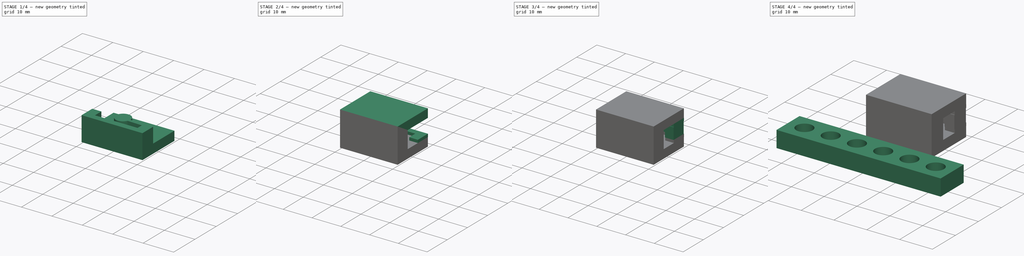
[diagram: build sequence overview — one tinted view per stage of 4, left to right]
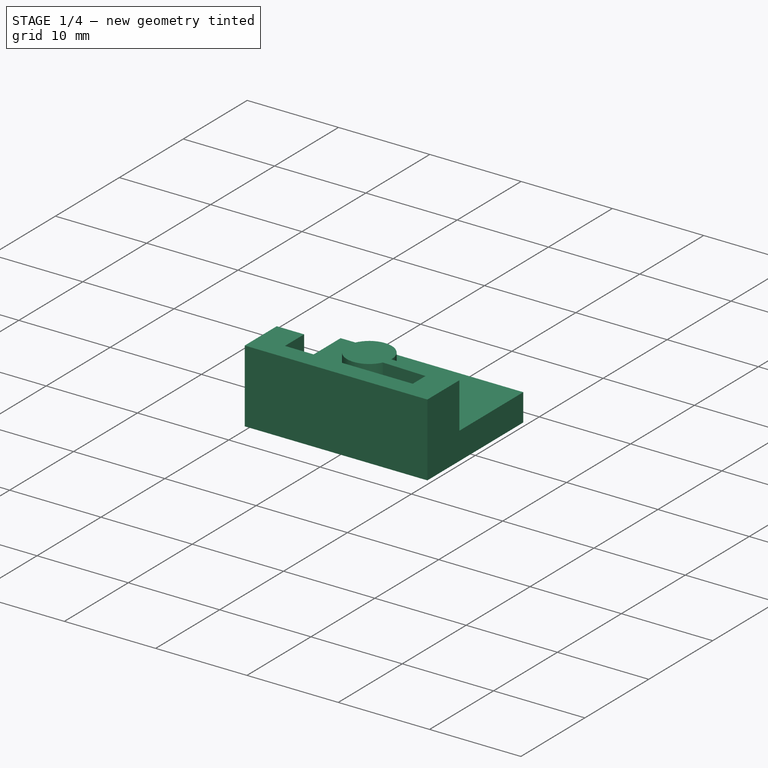
[diagram: stage 1 of 4 — iso view after this stage's code; geometry added in this stage tinted green]
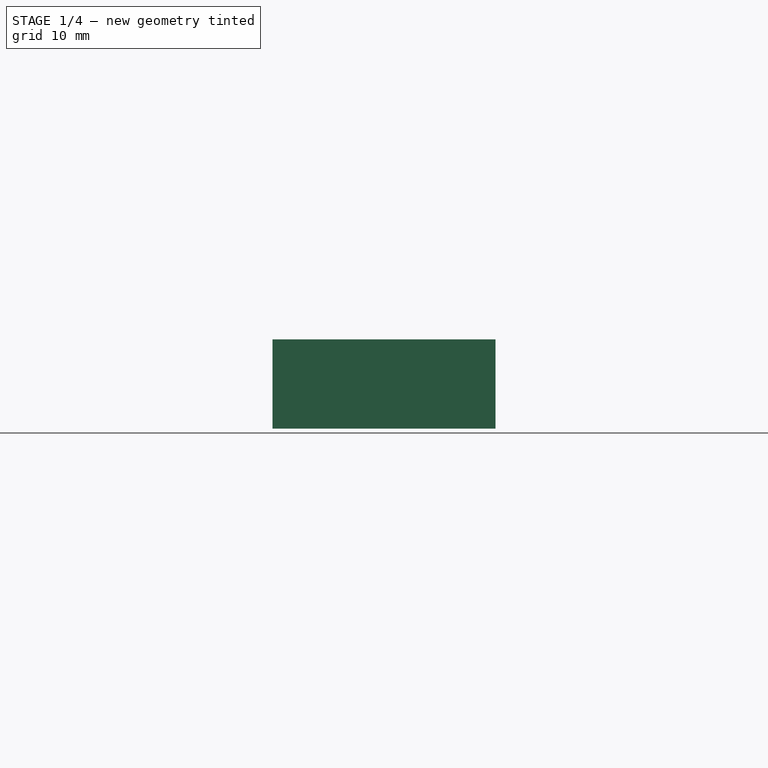
[diagram: stage 1 of 4 — front view after this stage's code; geometry added in this stage tinted green]
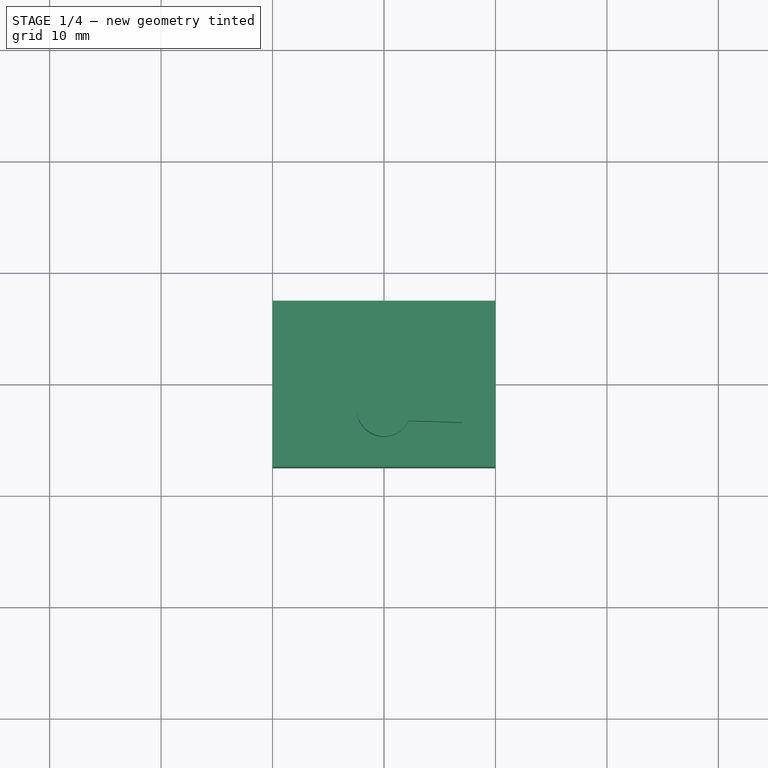
[diagram: stage 1 of 4 — top view after this stage's code; geometry added in this stage tinted green]
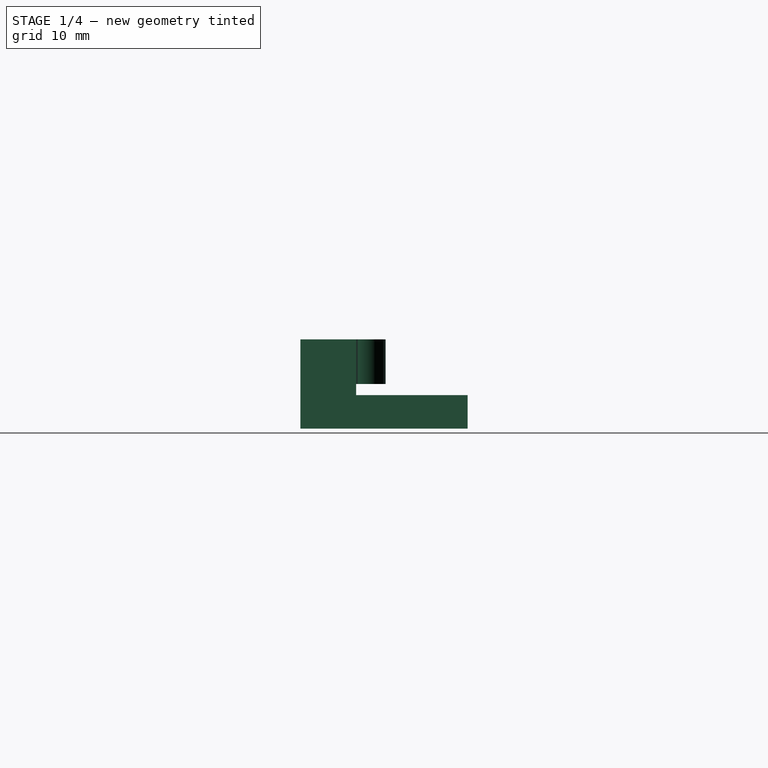
[diagram: stage 1 of 4 — right view after this stage's code; geometry added in this stage tinted green]
FCSTD DOCUMENT  (FreeCAD 1.0R39319 (Git))
Label: ratchet
License: All rights reserved
LicenseURL: https://en.wikipedia.org/wiki/All_rights_reserved
objects: Sketcher::SketchObject×10, PartDesign::Pad×9, PartDesign::Plane×6, PartDesign::Body×2, PartDesign::Pocket×1, PartDesign::LinearPattern×1
note: 60 computed .brp shape members not serialized (recipe doc carries the construction recipe); baked Part::Feature solids carry a one-line shape summary decoded from their .brp

FEATURE [PartDesign::Body] Body
  AllowCompound = false
  Group = -> [Sketch,Pad,Sketch001,Pocket,LinearPattern]
  Origin = -> Origin
  Tip = -> LinearPattern
FEATURE [Sketcher::SketchObject] Sketch002
  ArcFitTolerance = 1e-06
  AttachmentSupport = -> [XY_Plane001]
  FullyConstrained = true
  MakeInternals = false
  MapMode = 5
  sketch-geometry (5):
    g0: LineSegment StartX=-10 StartY=12.5 StartZ=0 EndX=10 EndY=12.5 EndZ=0
    g1: LineSegment StartX=10 StartY=12.5 StartZ=0 EndX=10 EndY=27.5 EndZ=0
    g2: LineSegment StartX=10 StartY=27.5 StartZ=0 EndX=-10 EndY=27.5 EndZ=0
    g3: LineSegment StartX=-10 StartY=27.5 StartZ=0 EndX=-10 EndY=12.5 EndZ=0
    g4: GeomPoint [constr] X=0 Y=20 Z=0
  constraints (13):
    c: Coincident(g0,g1)
    c: Coincident(g1,g2)
    c: Coincident(g2,g3)
    c: Coincident(g3,g0)
    c: Horizontal(g0)
    c: Horizontal(g2)
    c: Vertical(g1)
    c: Vertical(g3)
    c: Symmetric(g2,g0,g4)
    c: Distance(g1,g3) = 20
    c: Distance(g0,g2) = 15
    c: PointOnObject(g4,g-2)
    c: DistanceY(g-1,g4) = 20
FEATURE [PartDesign::Pad] Pad001
  Direction = (0,0,1)
  Length = 3
  Length2 = 10
  Profile = -> Sketch002
  ReferenceAxis = -> Sketch002 [N_Axis]
  Refine = true
  Suppressed = false
  Type = 0
FEATURE [PartDesign::Plane] DatumPlane
  AttachmentSupport = -> [Pad001]
  Length = 60
  MapMode = 5
  Placement = pos=(0,0,3) rot=(0,0,1;0rad)
  ResizeMode = 0
  Width = 60
FEATURE [Sketcher::SketchObject] Sketch003
  ArcFitTolerance = 1e-06
  AttachmentSupport = -> [DatumPlane]
  FullyConstrained = false
  MakeInternals = false
  MapMode = 5
  Placement = pos=(0,0,3) rot=(0,0,1;0rad)
  sketch-geometry (9):
    g0: LineSegment StartX=-10 StartY=12.5 StartZ=0 EndX=10 EndY=12.5 EndZ=0
    g1: LineSegment StartX=10 StartY=12.5 StartZ=0 EndX=10 EndY=17.5 EndZ=0
    g2: LineSegment StartX=-10 StartY=17.5 StartZ=0 EndX=-10 EndY=12.5 EndZ=0
    g3: GeomPoint [constr] X=0 Y=14.8403 Z=0
    g4: LineSegment StartX=-10 StartY=17.5 StartZ=0 EndX=-7 EndY=17.5 EndZ=0
    g5: LineSegment StartX=-7 StartY=14.5 StartZ=0 EndX=7 EndY=14.5 EndZ=0
    g6: LineSegment StartX=7 StartY=17.5 StartZ=0 EndX=10 EndY=17.5 EndZ=0
    g7: LineSegment StartX=-7 StartY=17.5 StartZ=0 EndX=-7 EndY=14.5 EndZ=0
    g8: LineSegment StartX=7 StartY=17.5 StartZ=0 EndX=7 EndY=14.5 EndZ=0
  constraints (25):
    c: Coincident(g0,g1)
    c: Coincident(g2,g0)
    c: Horizontal(g0)
    c: Vertical(g1)
    c: Vertical(g2)
    c: Distance(g1,g2) = 20
    c: Distance(g0,g2) = 5
    c: PointOnObject(g3,g-2)
    c: DistanceY(g-1,g0) = 12.5
    c: Coincident(g4,g2)
    c: Horizontal(g5)
    c: Coincident(g6,g1)
    c: Coincident(g7,g4)
    c: Coincident(g7,g5)
    c: Parallel(g7,g-2)
    c: Coincident(g8,g6)
    c: Coincident(g8,g5)
    c: Parallel(g-2,g8)
    c: Parallel(g4,g-1)
    c: Parallel(g6,g-1)
    c: DistanceY(g0,g5) = 2
    c: DistanceX(g2,g4) = 3
    c: DistanceX(g6,g1) = 3
    c: DistanceY(g0,g1) = 5
    c: DistanceX(g0,g3) = 10
FEATURE [PartDesign::Pad] Pad002
  BaseFeature = -> Pad001
  Direction = (0,0,1)
  Length = 1
  Length2 = 10
  Profile = -> Sketch003
  ReferenceAxis = -> Sketch003 [N_Axis]
  Refine = true
  Suppressed = false
  Type = 0
FEATURE [PartDesign::Plane] DatumPlane002
  AttachmentSupport = -> [Pad002]
  Length = 60
  MapMode = 5
  Placement = pos=(0,0,4) rot=(0,0,1;0rad)
  ResizeMode = 0
  Width = 60
FEATURE [Sketcher::SketchObject] Sketch005
  ArcFitTolerance = 1e-06
  AttachmentSupport = -> [DatumPlane002]
  FullyConstrained = false
  MakeInternals = false
  MapMode = 5
  Placement = pos=(0,0,4) rot=(0,0,1;0rad)
  sketch-geometry (12):
    g0: LineSegment StartX=-10 StartY=12.5 StartZ=0 EndX=10 EndY=12.5 EndZ=0
    g1: LineSegment StartX=10 StartY=12.5 StartZ=0 EndX=10 EndY=17.5 EndZ=0
    g2: LineSegment StartX=-10 StartY=17.5 StartZ=0 EndX=-10 EndY=12.5 EndZ=0
    g3: GeomPoint [constr] X=0 Y=14.8403 Z=0
    g4: LineSegment StartX=-10 StartY=17.5 StartZ=0 EndX=-7 EndY=17.5 EndZ=0
    g5: LineSegment StartX=-7 StartY=14.5 StartZ=0 EndX=7 EndY=14.5 EndZ=0
    g6: LineSegment StartX=7 StartY=17.5 StartZ=0 EndX=10 EndY=17.5 EndZ=0
    g7: LineSegment StartX=-7 StartY=17.5 StartZ=0 EndX=-7 EndY=14.5 EndZ=0
    g8: LineSegment StartX=7 StartY=16.4995 StartZ=0 EndX=7 EndY=14.5 EndZ=0
    g9: ArcOfCircle CenterX=0 CenterY=17.7 CenterZ=0 NormalX=0 NormalY=0 NormalZ=1 AngleXU=0 Radius=2.45 StartAngle=6.26097 EndAngle=12.1246
    g10: LineSegment StartX=2.4494 StartY=17.6456 StartZ=0 EndX=7 EndY=17.5 EndZ=0
    g11: LineSegment StartX=7 StartY=16.4995 StartZ=0 EndX=2.21481 EndY=16.6526 EndZ=0
  constraints (31):
    c: Coincident(g0,g1)
    c: Coincident(g2,g0)
    c: Horizontal(g0)
    c: Vertical(g1)
    c: Vertical(g2)
    c: Distance(g1,g2) = 20
    c: Distance(g0,g2) = 5
    c: PointOnObject(g3,g-2)
    c: DistanceY(g-1,g0) = 12.5
    c: Coincident(g4,g2)
    c: Horizontal(g5)
    c: Coincident(g6,g1)
    c: Coincident(g7,g4)
    c: Coincident(g7,g5)
    c: Parallel(g7,g-2)
    c: Coincident(g8,g5)
    c: Parallel(g-2,g8)
    c: Parallel(g4,g-1)
    c: Parallel(g6,g-1)
    c: DistanceY(g0,g5) = 2
    c: DistanceX(g2,g4) = 3
    c: DistanceX(g6,g1) = 3
    c: DistanceY(g0,g1) = 5
    c: DistanceX(g0,g3) = 10
    c: Diameter(g9) = 4.9
    c: PointOnObject(g9,g-2)
    c: DistanceY(g0,g9) = 5.2
    c: Parallel(g10,g11)
    c: Coincident(g9,g11)
    c: Coincident(g9,g10)
    c: Coincident(g8,g11)
FEATURE [PartDesign::Pad] Pad003
  BaseFeature = -> Pad002
  Direction = (0,0,1)
  Length = 4
  Length2 = 10
  Profile = -> Sketch005
  ReferenceAxis = -> Sketch005 [N_Axis]
  Refine = true
  Suppressed = false
  Type = 0
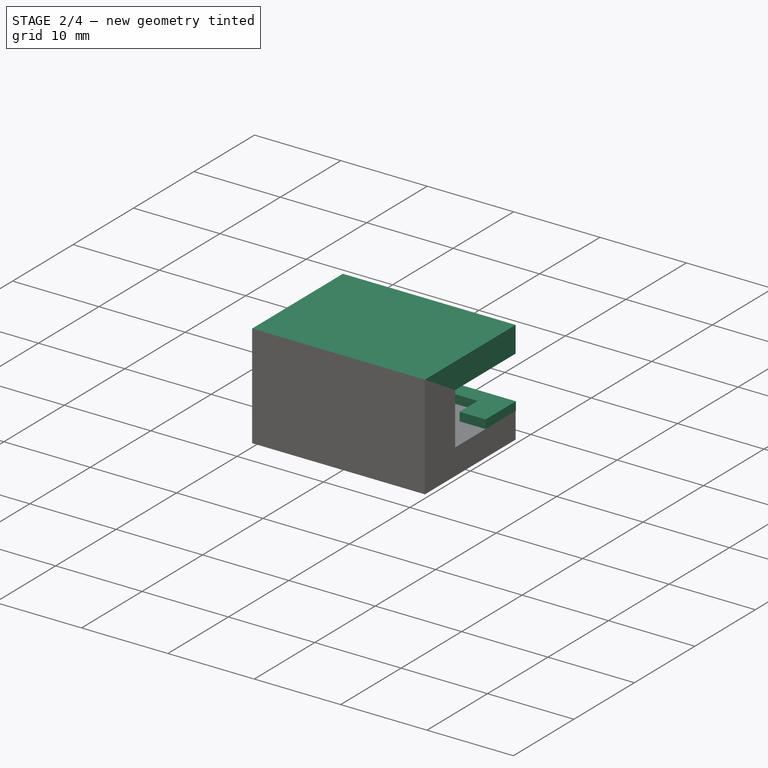
[diagram: stage 2 of 4 — iso view after this stage's code; geometry added in this stage tinted green]
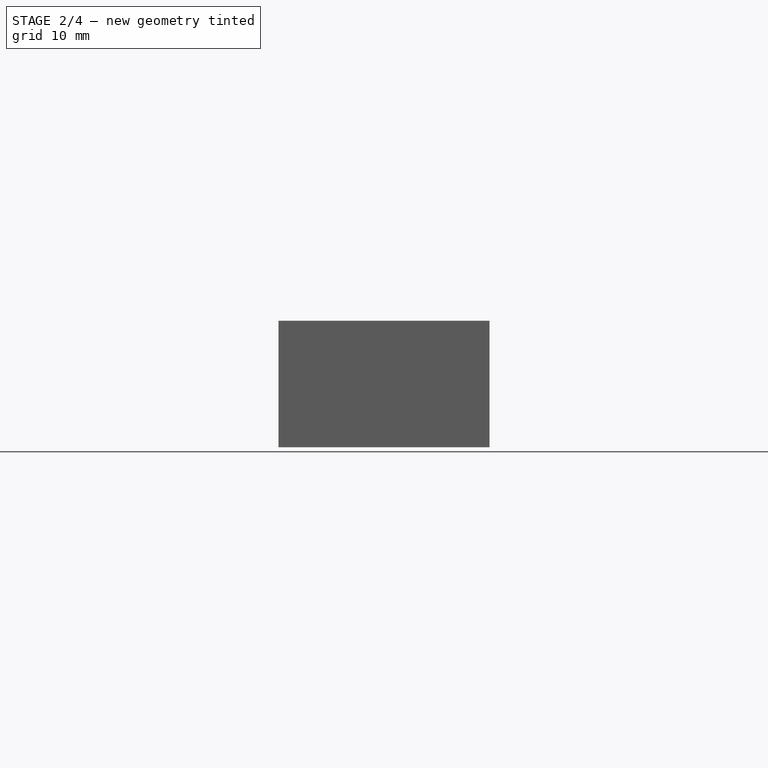
[diagram: stage 2 of 4 — front view after this stage's code; geometry added in this stage tinted green]
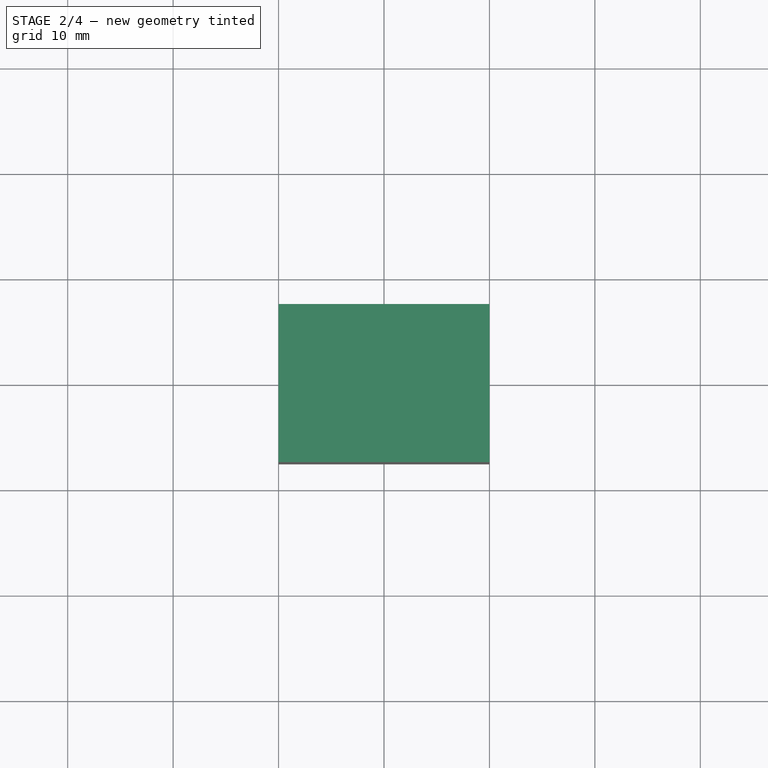
[diagram: stage 2 of 4 — top view after this stage's code; geometry added in this stage tinted green]
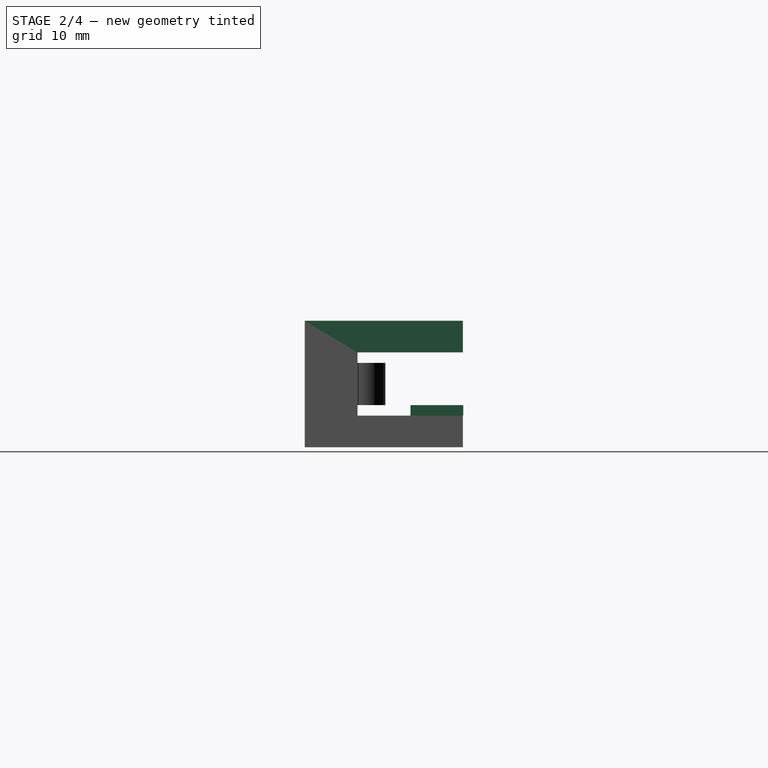
[diagram: stage 2 of 4 — right view after this stage's code; geometry added in this stage tinted green]
FEATURE [PartDesign::Plane] DatumPlane003
  AttachmentSupport = -> [Pad003]
  Length = 60
  MapMode = 5
  Placement = pos=(0,0,8) rot=(0,0,1;0rad)
  ResizeMode = 0
  Width = 60
FEATURE [Sketcher::SketchObject] Sketch006
  ArcFitTolerance = 1e-06
  AttachmentSupport = -> [DatumPlane003]
  FullyConstrained = false
  MakeInternals = false
  MapMode = 5
  Placement = pos=(0,0,8) rot=(0,0,1;0rad)
  sketch-geometry (9):
    g0: LineSegment StartX=-10 StartY=12.5 StartZ=0 EndX=10 EndY=12.5 EndZ=0
    g1: LineSegment StartX=10 StartY=12.5 StartZ=0 EndX=10 EndY=17.5 EndZ=0
    g2: LineSegment StartX=-10 StartY=17.5 StartZ=0 EndX=-10 EndY=12.5 EndZ=0
    g3: GeomPoint [constr] X=0 Y=14.8403 Z=0
    g4: LineSegment StartX=-10 StartY=17.5 StartZ=0 EndX=-7 EndY=17.5 EndZ=0
    g5: LineSegment StartX=-7 StartY=14.5 StartZ=0 EndX=7 EndY=14.5 EndZ=0
    g6: LineSegment StartX=7 StartY=17.5 StartZ=0 EndX=10 EndY=17.5 EndZ=0
    g7: LineSegment StartX=-7 StartY=17.5 StartZ=0 EndX=-7 EndY=14.5 EndZ=0
    g8: LineSegment StartX=7 StartY=17.5 StartZ=0 EndX=7 EndY=14.5 EndZ=0
  constraints (25):
    c: Coincident(g0,g1)
    c: Coincident(g2,g0)
    c: Horizontal(g0)
    c: Vertical(g1)
    c: Vertical(g2)
    c: Distance(g1,g2) = 20
    c: Distance(g0,g2) = 5
    c: PointOnObject(g3,g-2)
    c: DistanceY(g-1,g0) = 12.5
    c: Coincident(g4,g2)
    c: Horizontal(g5)
    c: Coincident(g6,g1)
    c: Coincident(g7,g4)
    c: Coincident(g7,g5)
    c: Parallel(g7,g-2)
    c: Coincident(g8,g6)
    c: Coincident(g8,g5)
    c: Parallel(g-2,g8)
    c: Parallel(g4,g-1)
    c: Parallel(g6,g-1)
    c: DistanceY(g0,g5) = 2
    c: DistanceX(g2,g4) = 3
    c: DistanceX(g6,g1) = 3
    c: DistanceY(g0,g1) = 5
    c: DistanceX(g0,g3) = 10
FEATURE [PartDesign::Pad] Pad004
  BaseFeature = -> Pad003
  Direction = (0,0,1)
  Length = 1
  Length2 = 10
  Profile = -> Sketch006
  ReferenceAxis = -> Sketch006 [N_Axis]
  Refine = true
  Suppressed = false
  Type = 0
FEATURE [PartDesign::Plane] DatumPlane004
  AttachmentSupport = -> [Pad004]
  Length = 60
  MapMode = 5
  Placement = pos=(0,0,9) rot=(0,0,1;0rad)
  ResizeMode = 0
  Width = 60
FEATURE [Sketcher::SketchObject] Sketch007
  ArcFitTolerance = 1e-06
  AttachmentSupport = -> [DatumPlane004]
  FullyConstrained = true
  MakeInternals = false
  MapMode = 5
  Placement = pos=(0,0,9) rot=(0,0,1;0rad)
  sketch-geometry (5):
    g0: LineSegment StartX=-10 StartY=12.5 StartZ=0 EndX=10 EndY=12.5 EndZ=0
    g1: LineSegment StartX=10 StartY=12.5 StartZ=0 EndX=10 EndY=27.5 EndZ=0
    g2: LineSegment StartX=10 StartY=27.5 StartZ=0 EndX=-10 EndY=27.5 EndZ=0
    g3: LineSegment StartX=-10 StartY=27.5 StartZ=0 EndX=-10 EndY=12.5 EndZ=0
    g4: GeomPoint [constr] X=0 Y=20 Z=0
  constraints (13):
    c: Coincident(g0,g1)
    c: Coincident(g1,g2)
    c: Coincident(g2,g3)
    c: Coincident(g3,g0)
    c: Horizontal(g0)
    c: Horizontal(g2)
    c: Vertical(g1)
    c: Vertical(g3)
    c: Symmetric(g2,g0,g4)
    c: Distance(g1,g3) = 20
    c: Distance(g0,g2) = 15
    c: PointOnObject(g4,g-2)
    c: DistanceY(g-1,g0) = 12.5
FEATURE [PartDesign::Pad] Pad005
  BaseFeature = -> Pad004
  Direction = (0,0,1)
  Length = 3
  Length2 = 10
  Profile = -> Sketch007
  ReferenceAxis = -> Sketch007 [N_Axis]
  Refine = true
  Suppressed = false
  Type = 0
FEATURE [Sketcher::SketchObject] Sketch008
  ArcFitTolerance = 1e-06
  AttachmentSupport = -> [DatumPlane]
  FullyConstrained = false
  MakeInternals = false
  MapMode = 5
  Placement = pos=(0,0,3) rot=(0,0,1;0rad)
  sketch-geometry (9):
    g0: LineSegment StartX=10 StartY=27.5295 StartZ=0 EndX=-10 EndY=27.5295 EndZ=0
    g1: LineSegment StartX=-10 StartY=27.5295 StartZ=0 EndX=-10 EndY=22.5295 EndZ=0
    g2: LineSegment StartX=10 StartY=22.5295 StartZ=0 EndX=10 EndY=27.5295 EndZ=0
    g3: GeomPoint [constr] X=0 Y=25.1892 Z=0
    g4: LineSegment StartX=10 StartY=22.5295 StartZ=0 EndX=7 EndY=22.5295 EndZ=0
    g5: LineSegment StartX=7 StartY=25.5295 StartZ=0 EndX=-7 EndY=25.5295 EndZ=0
    g6: LineSegment StartX=-7 StartY=22.5295 StartZ=0 EndX=-10 EndY=22.5295 EndZ=0
    g7: LineSegment StartX=7 StartY=22.5295 StartZ=0 EndX=7 EndY=25.5295 EndZ=0
    g8: LineSegment StartX=-7 StartY=22.5295 StartZ=0 EndX=-7 EndY=25.5295 EndZ=0
  constraints (10):
    c: Coincident(g0,g1)
    c: Coincident(g2,g0)
    c: Distance(g1,g2) = 20
    c: Distance(g0,g2) = 5
    c: Coincident(g4,g2)
    c: Coincident(g6,g1)
    c: Coincident(g7,g4)
    c: Coincident(g7,g5)
    c: Coincident(g8,g6)
    c: Coincident(g8,g5)
FEATURE [PartDesign::Pad] Pad006
  BaseFeature = -> Pad005
  Direction = (0,0,1)
  Length = 1
  Length2 = 10
  Profile = -> Sketch008
  ReferenceAxis = -> Sketch008 [N_Axis]
  Refine = true
  Suppressed = false
  Type = 0
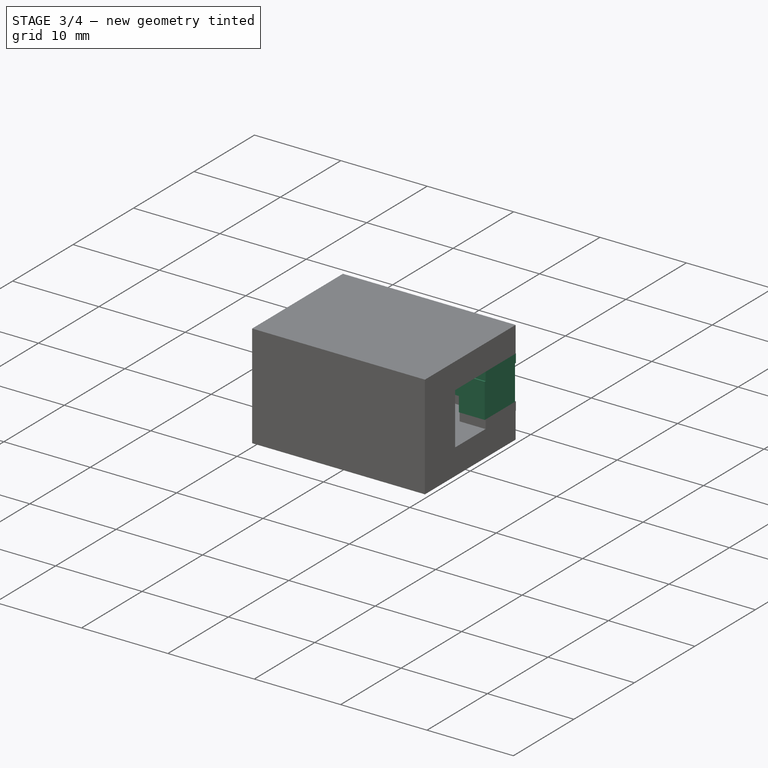
[diagram: stage 3 of 4 — iso view after this stage's code; geometry added in this stage tinted green]
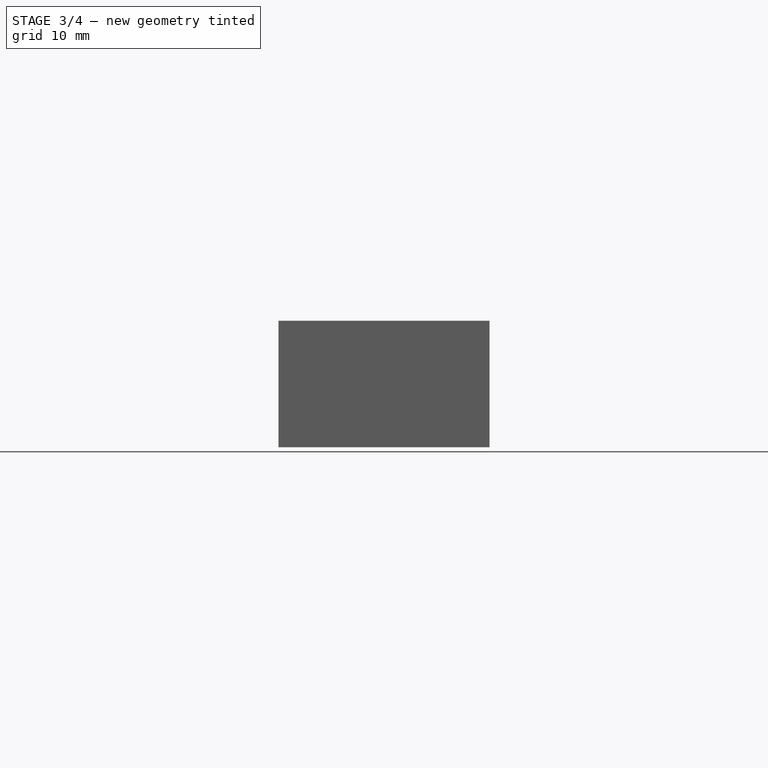
[diagram: stage 3 of 4 — front view after this stage's code; geometry added in this stage tinted green]
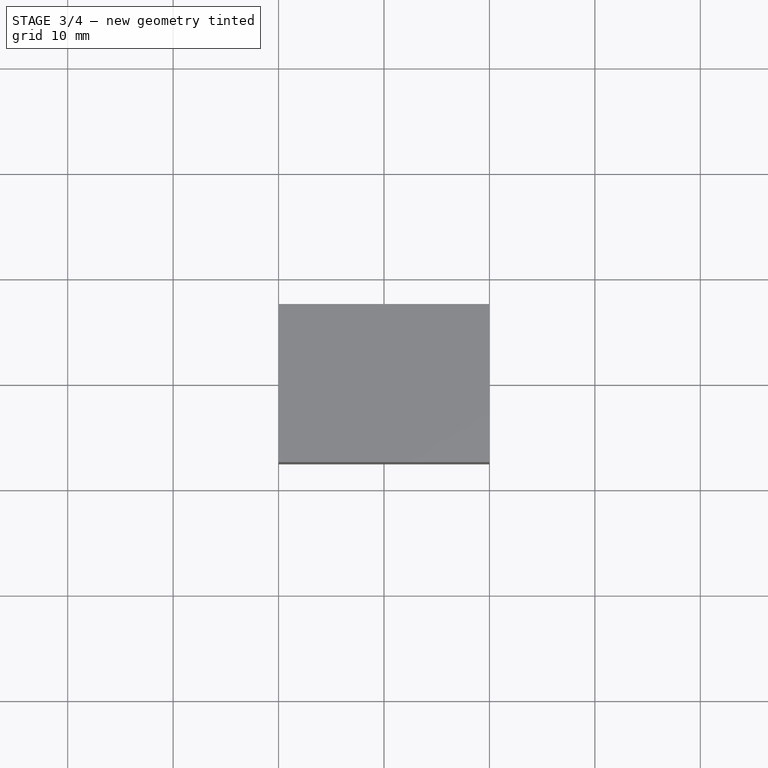
[diagram: stage 3 of 4 — top view after this stage's code; geometry added in this stage tinted green]
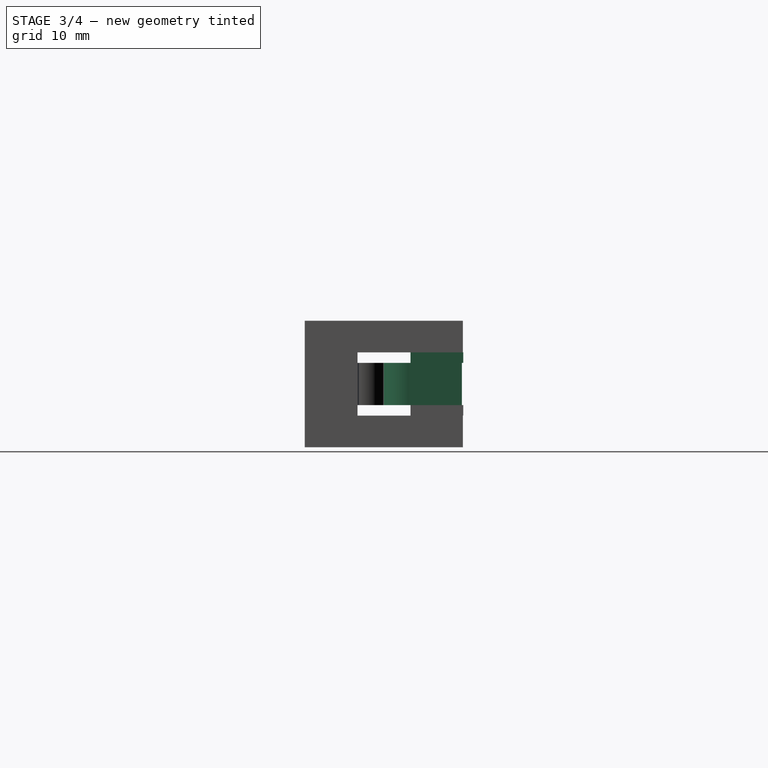
[diagram: stage 3 of 4 — right view after this stage's code; geometry added in this stage tinted green]
FEATURE [PartDesign::Plane] DatumPlane005
  AttachmentSupport = -> [Pad006]
  Length = 60
  MapMode = 5
  Placement = pos=(0,0,4) rot=(0,0,1;0rad)
  ResizeMode = 0
  Width = 60
FEATURE [Sketcher::SketchObject] Sketch009
  ArcFitTolerance = 1e-06
  AttachmentSupport = -> [DatumPlane005]
  FullyConstrained = false
  MakeInternals = false
  MapMode = 5
  Placement = pos=(0,0,4) rot=(0,0,1;0rad)
  sketch-geometry (12):
    g0: LineSegment StartX=10 StartY=27.4 StartZ=0 EndX=-10 EndY=27.4 EndZ=0
    g1: LineSegment StartX=-10 StartY=27.4 StartZ=0 EndX=-10 EndY=22.4 EndZ=0
    g2: LineSegment StartX=10 StartY=22.4 StartZ=0 EndX=10 EndY=27.4 EndZ=0
    g3: GeomPoint [constr] X=0 Y=25.0597 Z=0
    g4: LineSegment StartX=10 StartY=22.4 StartZ=0 EndX=7 EndY=22.4 EndZ=0
    g5: LineSegment StartX=7 StartY=25.4 StartZ=0 EndX=-7 EndY=25.4 EndZ=0
    g6: LineSegment StartX=-7 StartY=22.4 StartZ=0 EndX=-10 EndY=22.4 EndZ=0
    g7: LineSegment StartX=7 StartY=22.4 StartZ=0 EndX=7 EndY=25.4 EndZ=0
    g8: LineSegment StartX=-7 StartY=23.4005 StartZ=0 EndX=-7 EndY=25.4 EndZ=0
    g9: ArcOfCircle CenterX=5.3943e-07 CenterY=22.2 CenterZ=0 NormalX=0 NormalY=0 NormalZ=1 AngleXU=0 Radius=2.45 StartAngle=3.11938 EndAngle=8.98303
    g10: LineSegment StartX=-2.44939 StartY=22.2544 StartZ=0 EndX=-7 EndY=22.4 EndZ=0
    g11: LineSegment StartX=-7 StartY=23.4005 StartZ=0 EndX=-2.21481 EndY=23.2474 EndZ=0
  constraints (14):
    c: Coincident(g0,g1)
    c: Coincident(g2,g0)
    c: Distance(g1,g2) = 20
    c: Distance(g0,g2) = 5
    c: Coincident(g4,g2)
    c: Coincident(g6,g1)
    c: Coincident(g7,g4)
    c: Coincident(g7,g5)
    c: Coincident(g8,g5)
    c: Diameter(g9) = 4.9
    c: Parallel(g10,g11)
    c: Coincident(g9,g11)
    c: Coincident(g9,g10)
    c: Coincident(g8,g11)
FEATURE [PartDesign::Pad] Pad007
  BaseFeature = -> Pad006
  Direction = (0,0,1)
  Length = 4
  Length2 = 10
  Profile = -> Sketch009
  ReferenceAxis = -> Sketch009 [N_Axis]
  Refine = true
  Suppressed = false
  Type = 0
FEATURE [PartDesign::Plane] DatumPlane006
  AttachmentSupport = -> [Pad007]
  Length = 60
  MapMode = 5
  Placement = pos=(0,0,8) rot=(0,0,1;0rad)
  ResizeMode = 0
  Width = 60
FEATURE [Sketcher::SketchObject] Sketch010
  ArcFitTolerance = 1e-06
  AttachmentSupport = -> [DatumPlane006]
  FullyConstrained = false
  MakeInternals = false
  MapMode = 5
  Placement = pos=(0,0,8) rot=(0,0,1;0rad)
  sketch-geometry (9):
    g0: LineSegment StartX=10 StartY=27.5295 StartZ=0 EndX=-10 EndY=27.5295 EndZ=0
    g1: LineSegment StartX=-10 StartY=27.5295 StartZ=0 EndX=-10 EndY=22.5295 EndZ=0
    g2: LineSegment StartX=10 StartY=22.5295 StartZ=0 EndX=10 EndY=27.5295 EndZ=0
    g3: GeomPoint [constr] X=0 Y=25.1892 Z=0
    g4: LineSegment StartX=10 StartY=22.5295 StartZ=0 EndX=7 EndY=22.5295 EndZ=0
    g5: LineSegment StartX=7 StartY=25.5295 StartZ=0 EndX=-7 EndY=25.5295 EndZ=0
    g6: LineSegment StartX=-7 StartY=22.5295 StartZ=0 EndX=-10 EndY=22.5295 EndZ=0
    g7: LineSegment StartX=7 StartY=22.5295 StartZ=0 EndX=7 EndY=25.5295 EndZ=0
    g8: LineSegment StartX=-7 StartY=22.5295 StartZ=0 EndX=-7 EndY=25.5295 EndZ=0
  constraints (10):
    c: Coincident(g0,g1)
    c: Coincident(g2,g0)
    c: Distance(g1,g2) = 20
    c: Distance(g0,g2) = 5
    c: Coincident(g4,g2)
    c: Coincident(g6,g1)
    c: Coincident(g7,g4)
    c: Coincident(g7,g5)
    c: Coincident(g8,g6)
    c: Coincident(g8,g5)
FEATURE [PartDesign::Pad] Pad008
  BaseFeature = -> Pad007
  Direction = (0,0,1)
  Length = 1
  Length2 = 10
  Profile = -> Sketch010
  ReferenceAxis = -> Sketch010 [N_Axis]
  Refine = true
  Suppressed = false
  Type = 0
FEATURE [PartDesign::Body] Body001
  AllowCompound = false
  Group = -> [Sketch002,Pad001,DatumPlane,Sketch003,Pad002,DatumPlane002,Sketch005,Pad003,DatumPlane003,Sketch006,Pad004,DatumPlane004,Sketch007,Pad005,Sketch008,Pad006,DatumPlane005,Sketch009,Pad007,DatumPlane006,Sketch010,Pad008]
  Origin = -> Origin001
  Tip = -> Pad008
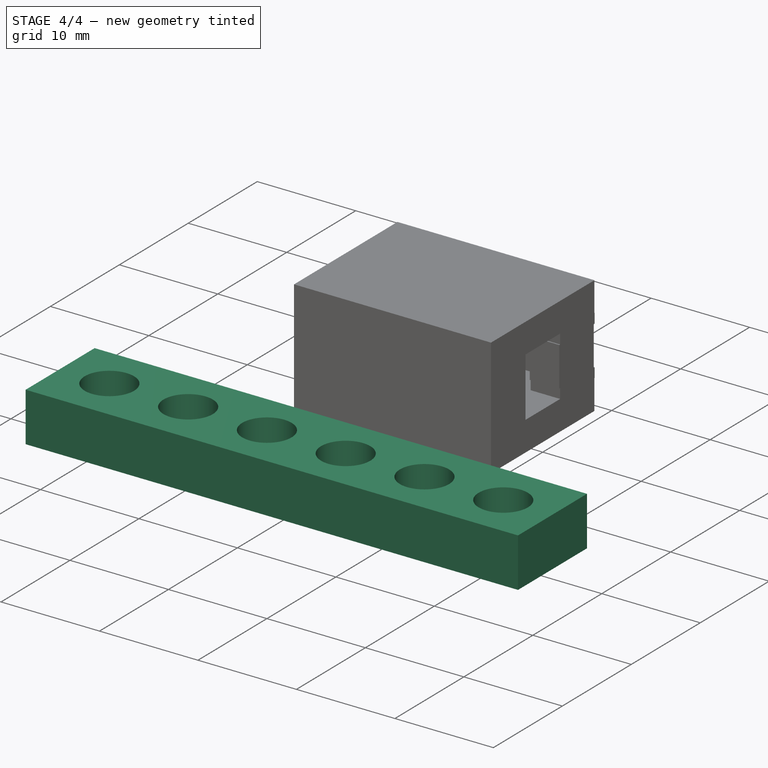
[diagram: stage 4 of 4 — iso view after this stage's code; geometry added in this stage tinted green]
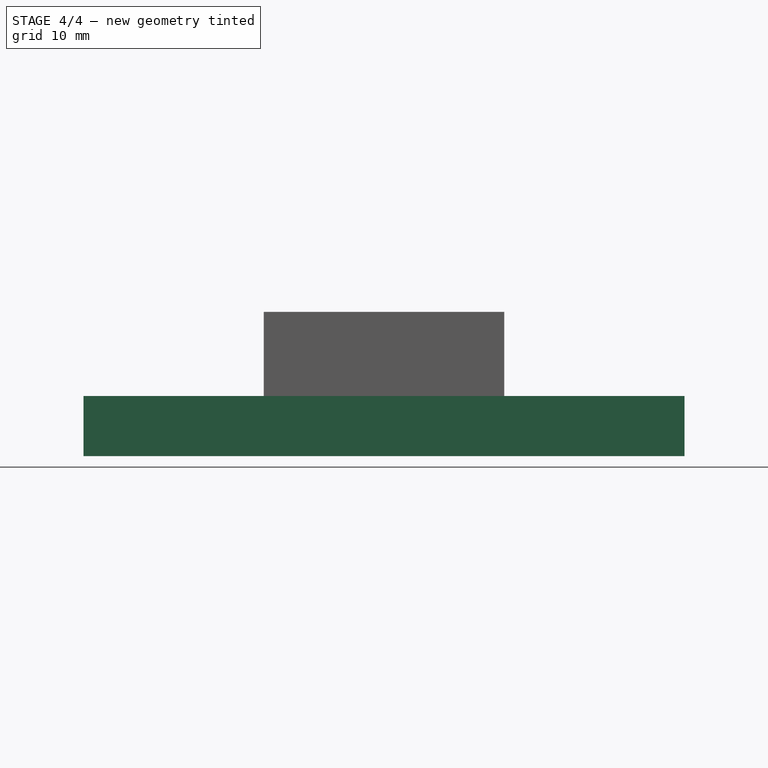
[diagram: stage 4 of 4 — front view after this stage's code; geometry added in this stage tinted green]
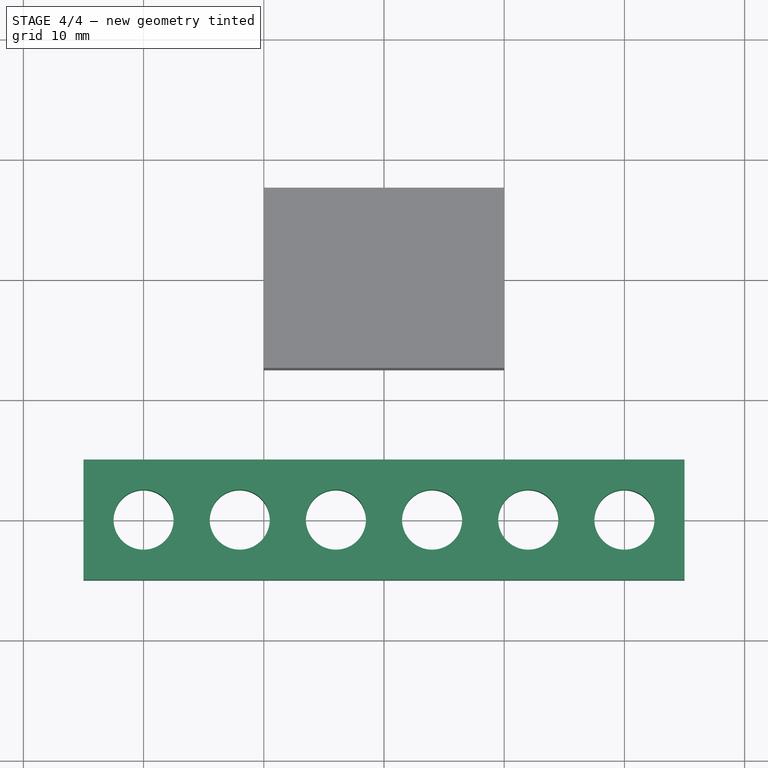
[diagram: stage 4 of 4 — top view after this stage's code; geometry added in this stage tinted green]
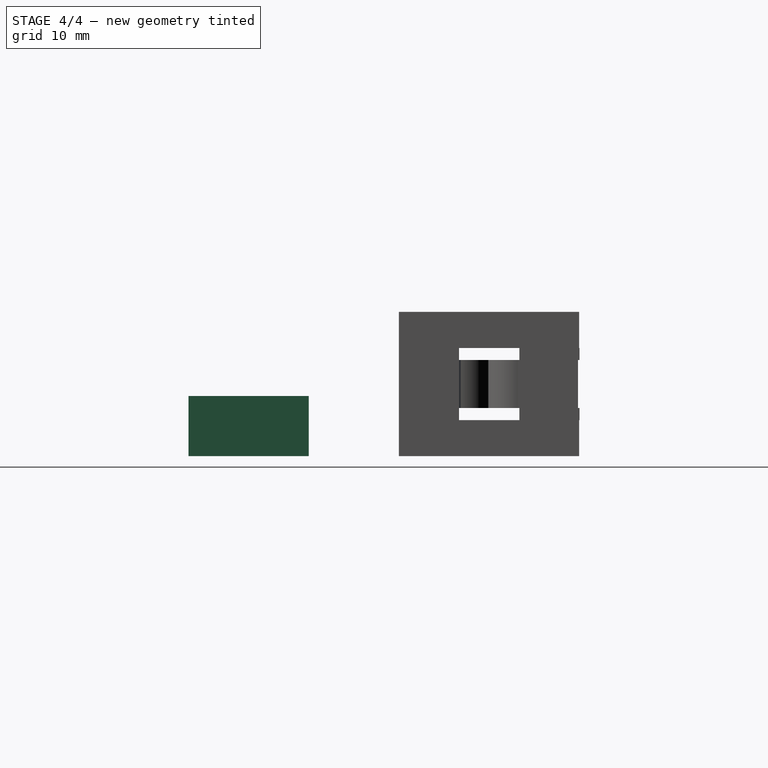
[diagram: stage 4 of 4 — right view after this stage's code; geometry added in this stage tinted green]
FEATURE [Sketcher::SketchObject] Sketch
  ArcFitTolerance = 1e-06
  AttachmentSupport = -> [XY_Plane]
  FullyConstrained = true
  MakeInternals = false
  MapMode = 5
  sketch-geometry (5):
    g0: LineSegment StartX=-25 StartY=-5 StartZ=0 EndX=25 EndY=-5 EndZ=0
    g1: LineSegment StartX=25 StartY=-5 StartZ=0 EndX=25 EndY=5 EndZ=0
    g2: LineSegment StartX=25 StartY=5 StartZ=0 EndX=-25 EndY=5 EndZ=0
    g3: LineSegment StartX=-25 StartY=5 StartZ=0 EndX=-25 EndY=-5 EndZ=0
    g4: GeomPoint [constr] X=0 Y=0 Z=0
  constraints (12):
    c: Coincident(g0,g1)
    c: Coincident(g1,g2)
    c: Coincident(g2,g3)
    c: Coincident(g3,g0)
    c: Horizontal(g0)
    c: Horizontal(g2)
    c: Vertical(g1)
    c: Vertical(g3)
    c: Symmetric(g2,g0,g4)
    c: Distance(g1,g3) = 50
    c: Distance(g0,g2) = 10
    c: Coincident(g4,g-1)
FEATURE [PartDesign::Pad] Pad
  Direction = (0,0,1)
  Length = 5
  Length2 = 10
  Profile = -> Sketch
  ReferenceAxis = -> Sketch [N_Axis]
  Refine = true
  Suppressed = false
  Type = 0
FEATURE [Sketcher::SketchObject] Sketch001
  ArcFitTolerance = 1e-06
  AttachmentSupport = -> [XY_Plane]
  FullyConstrained = true
  MakeInternals = false
  MapMode = 5
  sketch-geometry (1):
    g0: Circle CenterX=-20 CenterY=0 CenterZ=0 NormalX=0 NormalY=0 NormalZ=1 AngleXU=0 Radius=2.5
  constraints (3):
    c: Diameter(g0) = 5
    c: PointOnObject(g0,g-1)
    c: DistanceX(g0,g-1) = 20
FEATURE [PartDesign::Pocket] Pocket
  BaseFeature = -> Pad
  Direction = (0,0,-1)
  Length = 5
  Length2 = 5
  Profile = -> Sketch001
  ReferenceAxis = -> Sketch001 [N_Axis]
  Refine = true
  Reversed = true
  Suppressed = false
  Type = 1
FEATURE [PartDesign::LinearPattern] LinearPattern
  BaseFeature = -> Pocket
  Direction = -> Sketch001 [H_Axis]
  Length = 40
  Mode = 0
  Occurrences = 6
  Offset = 8
  Originals = -> [Pocket]
  Refine = true
  Suppressed = false
  TransformMode = 0
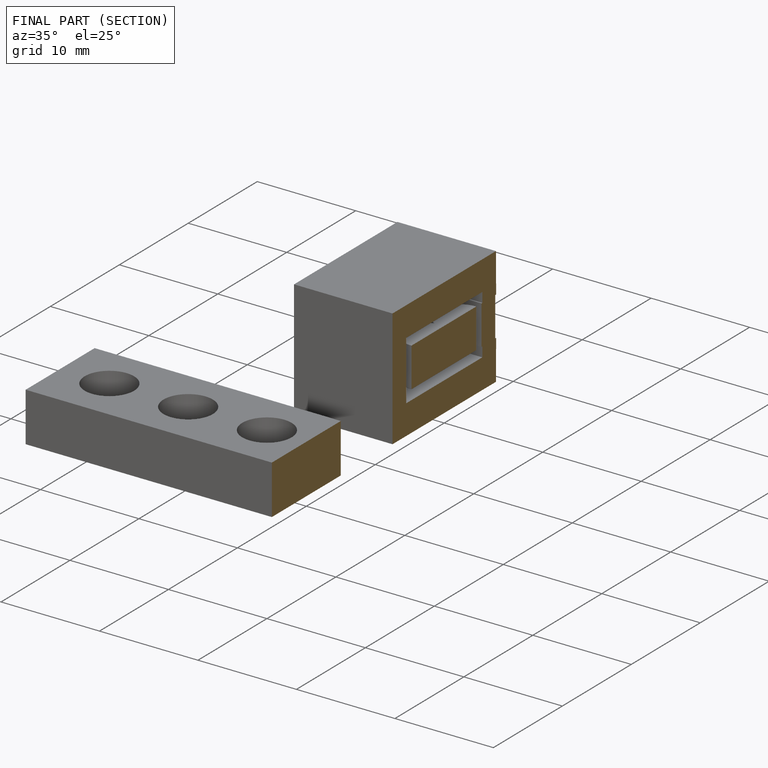
[diagram: finished part — half-section view (interior)]
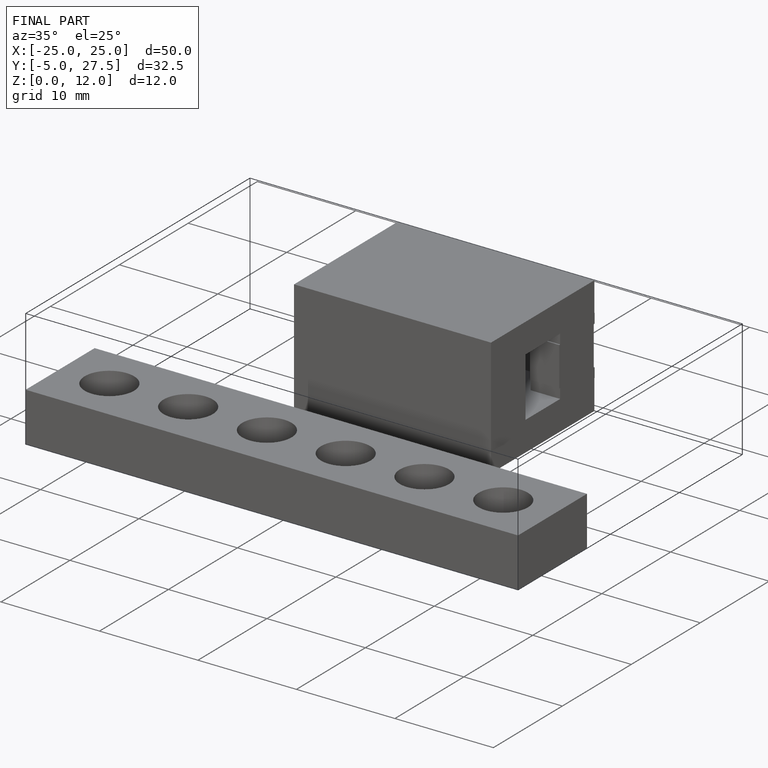
[diagram: finished part — iso view with bounding-box wireframe]
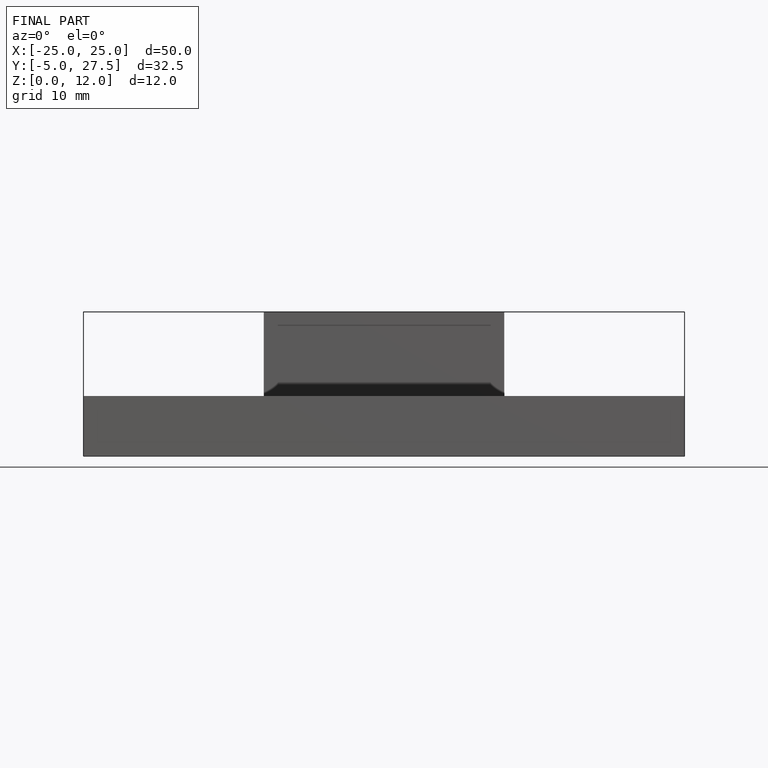
[diagram: finished part — front view with bounding-box wireframe]
